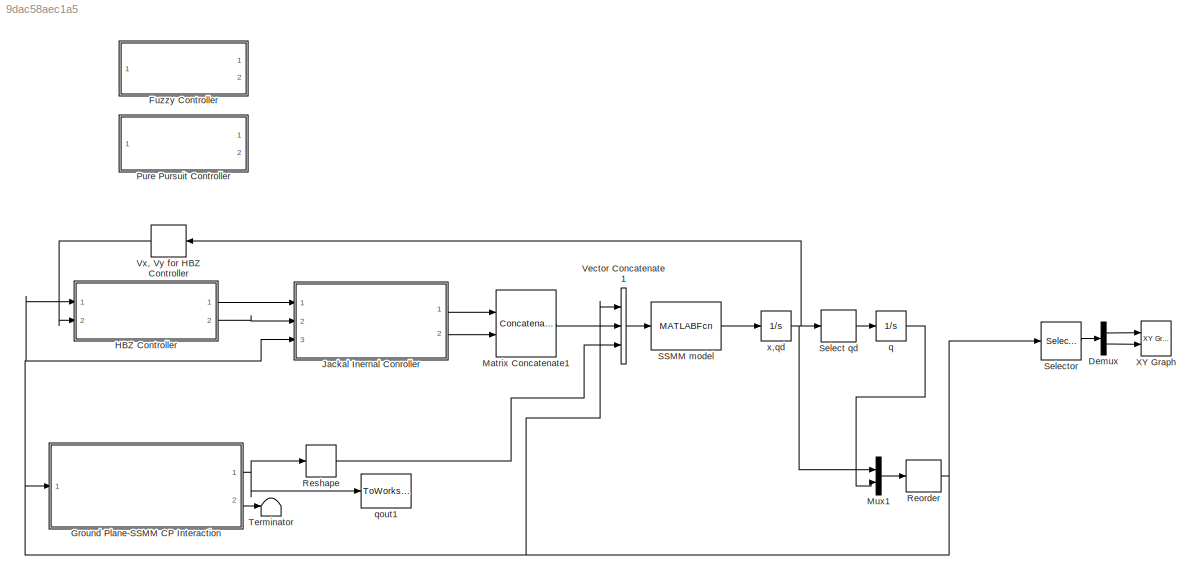
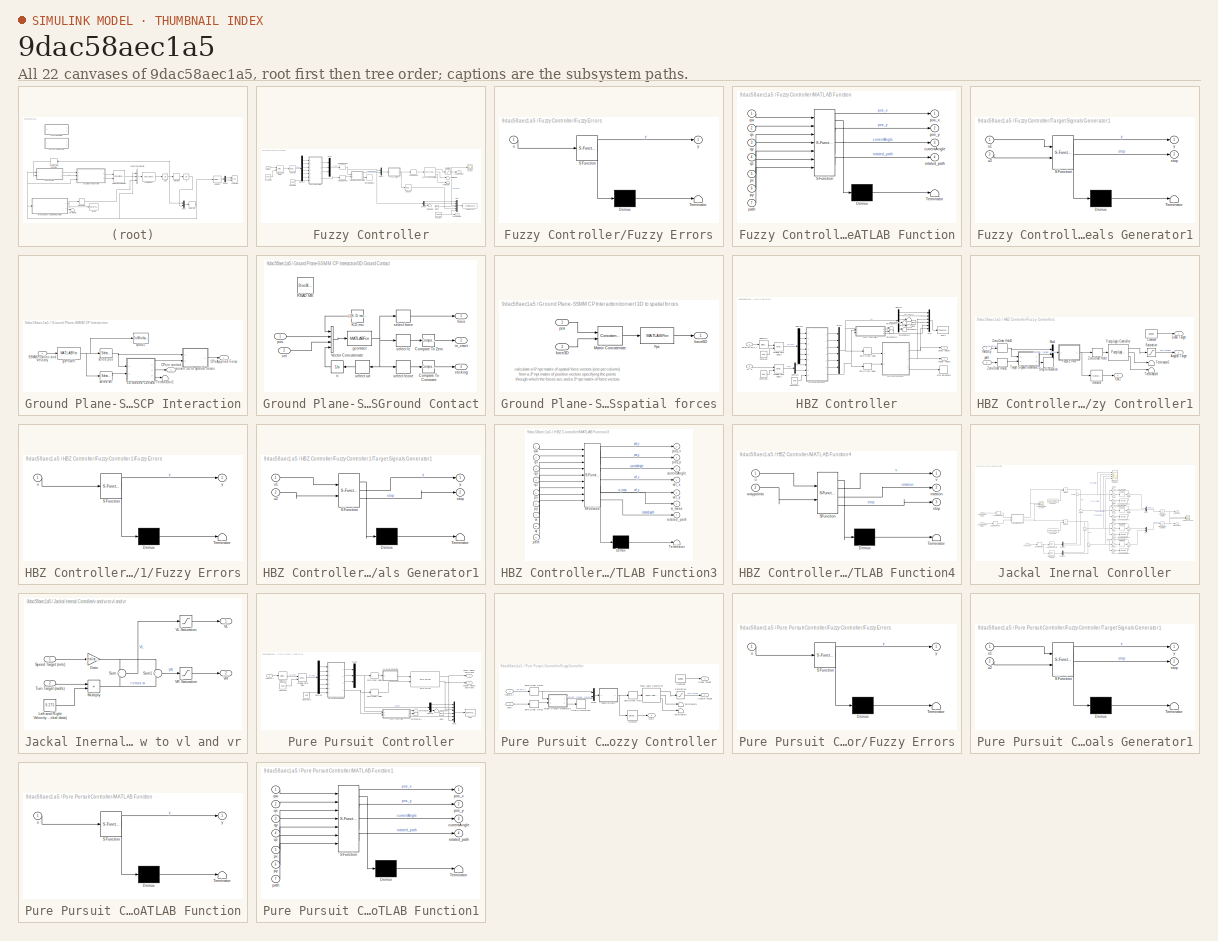
[diagram: thumbnail index - all 22 canvases of the model, root first then tree order]
MODEL slx_9dac58aec1a5
KIND model
CONFIG AbsTol = .05
CONFIG EnableMultiTasking = on
CONFIG FixedStep = 0.001
CONFIG InitFcn = SSMM_sim_Torque_3DOF_Init
CONFIG MaxStep = 1e-1
CONFIG MinStep = 1e-6
CONFIG RelTol = .05
CONFIG SampleTimeConstraint = Unconstrained
CONFIG SolverName = FixedStepAuto
CONFIG StartTime = 0.0
CONFIG StopTime = 15
BLOCK [Demux] Demux
  Outputs = 2
  Ports = [1, 2]
BLOCK [SubSystem] Fuzzy Controller
  Commented = on
  Ports = [1, 2]
  RequestExecContextInheritance = off
BLOCK [Outport] Fuzzy Controller/ Angular Target
  Port = 2
  VectorParamsAs1DForOutWhenUnconnected = off
BLOCK [Clock] Fuzzy Controller/Clock
BLOCK [Constant] Fuzzy Controller/Constant
  Value = speed
BLOCK [Constant] Fuzzy Controller/Constant1
  Value = path
BLOCK [Constant] Fuzzy Controller/Constant2
  Value = delay
BLOCK [Demux] Fuzzy Controller/Demux
  Outputs = 3
  Ports = [1, 3]
BLOCK [Demux] Fuzzy Controller/Demux1
  Outputs = 6
  Ports = [1, 6]
BLOCK [SubSystem] Fuzzy Controller/Fuzzy Errors
  ErrorFcn = Stateflow.Translate.translate
  PermitHierarchicalResolution = ExplicitOnly
  Ports = [1, 1]
  RequestExecContextInheritance = off
  SFBlockType = MATLAB Function
  TreatAsAtomicUnit = on
BLOCK [Demux] Fuzzy Controller/Fuzzy Errors/ Demux 
  Outputs = 1
  Ports = [1, 1]
BLOCK [S-Function] Fuzzy Controller/Fuzzy Errors/ SFunction 
  EnableBusSupport = on
  FunctionName = sf_sfun
  PortCounts = [1 2]
  Ports = [1, 2]
  SFcnIsStateOwnerBlock = off
  SFunctionDeploymentMode = off
  Tag = Stateflow S-Function 2
BLOCK [Terminator] Fuzzy Controller/Fuzzy Errors/ Terminator 
BLOCK [Inport] Fuzzy Controller/Fuzzy Errors/u
BLOCK [Outport] Fuzzy Controller/Fuzzy Errors/y
  VectorParamsAs1DForOutWhenUnconnected = off
BLOCK [Reference] Fuzzy Controller/Fuzzy Logic Controller  REF=fuzblock/Fuzzy Logic   (lib defined in mdl_858b3b3e7478)
Controller
  Ports = [1, 3]
  SourceBlock = fuzblock/Fuzzy Logic \nController
  SourceProductBaseCode = FL
  SourceType = Fuzzy Inference System
BLOCK [Outport] Fuzzy Controller/Linear Target
  VectorParamsAs1DForOutWhenUnconnected = off
BLOCK [SubSystem] Fuzzy Controller/MATLAB Function
  ErrorFcn = Stateflow.Translate.translate
  PermitHierarchicalResolution = ExplicitOnly
  Ports = [7, 4]
  RequestExecContextInheritance = off
  SFBlockType = MATLAB Function
  TreatAsAtomicUnit = on
BLOCK [Demux] Fuzzy Controller/MATLAB Function/ Demux 
  Outputs = 1
  Ports = [1, 1]
BLOCK [S-Function] Fuzzy Controller/MATLAB Function/ SFunction 
  EnableBusSupport = on
  FunctionName = sf_sfun
  PortCounts = [7 5]
  Ports = [7, 5]
  SFcnIsStateOwnerBlock = off
  SFunctionDeploymentMode = off
  Tag = Stateflow S-Function 10
BLOCK [Terminator] Fuzzy Controller/MATLAB Function/ Terminator 
BLOCK [Outport] Fuzzy Controller/MATLAB Function/currentAngle
  Port = 3
BLOCK [Inport] Fuzzy Controller/MATLAB Function/path
  Port = 7
BLOCK [Outport] Fuzzy Controller/MATLAB Function/pos_x
BLOCK [Outport] Fuzzy Controller/MATLAB Function/pos_y
  Port = 2
BLOCK [Inport] Fuzzy Controller/MATLAB Function/px
  Port = 5
BLOCK [Inport] Fuzzy Controller/MATLAB Function/py
  Port = 6
BLOCK [Inport] Fuzzy Controller/MATLAB Function/qw
BLOCK [Inport] Fuzzy Controller/MATLAB Function/qx
  Port = 2
BLOCK [Inport] Fuzzy Controller/MATLAB Function/qy
  Port = 3
BLOCK [Inport] Fuzzy Controller/MATLAB Function/qz
  Port = 4
BLOCK [Outport] Fuzzy Controller/MATLAB Function/rotated_path
  Port = 4
BLOCK [Mux] Fuzzy Controller/Mux
  DisplayOption = bar
  Inputs = 6
  Ports = [6, 1]
BLOCK [Mux] Fuzzy Controller/Mux1
  DisplayOption = bar
  Inputs = 2
  Ports = [2, 1]
BLOCK [Mux] Fuzzy Controller/Mux2
  DisplayOption = bar
  Inputs = 3
  Ports = [3, 1]
BLOCK [Saturate] Fuzzy Controller/Saturation
  LowerLimit = -angVeloSat
  UpperLimit = angVeloSat
BLOCK [Scope] Fuzzy Controller/Scope
  Floating = off
  NumInputPorts = 1
  Ports = [1]
  ScopeSpecificationString = Simulink.scopes.TimeScopeBlockCfg('CurrentConfiguration', extmgr.ConfigurationSet(extmgr.Configuration('Core','General UI',true),extmgr.Configuration('Core','Source UI',true),extmgr.Configuration('Sources','WiredSimulink',true,'DataLoggingVariableName','ScopeData1'),extmgr.Configuration('Visuals','Time Domain',true,'SerializedDisplays',{struct('MinYLimReal','-2.90872','MaxYLimReal','4.76763','YLab...<+1411ch>
BLOCK [Selector] Fuzzy Controller/Selector
  IndexOptions = Index vector (dialog)
  Indices = [1]
  InputPortWidth = 5
  OutputSizes = 1
  Ports = [1, 1]
BLOCK [Selector] Fuzzy Controller/Selector1
  IndexOptions = Index vector (dialog)
  Indices = [1 2 3 4 5 6]
  InputPortWidth = 21
  OutputSizes = 1
  Ports = [1, 1]
BLOCK [Stop] Fuzzy Controller/Stop Simulation1
BLOCK [SubSystem] Fuzzy Controller/Target Signals Generator1
  ErrorFcn = Stateflow.Translate.translate
  PermitHierarchicalResolution = ExplicitOnly
  Ports = [2, 2]
  RequestExecContextInheritance = off
  SFBlockType = MATLAB Function
  TreatAsAtomicUnit = on
BLOCK [Demux] Fuzzy Controller/Target Signals Generator1/ Demux 
  Outputs = 1
  Ports = [1, 1]
BLOCK [S-Function] Fuzzy Controller/Target Signals Generator1/ SFunction 
  EnableBusSupport = on
  FunctionName = sf_sfun
  PortCounts = [2 3]
  Ports = [2, 3]
  SFcnIsStateOwnerBlock = off
  SFunctionDeploymentMode = off
  Tag = Stateflow S-Function 3
BLOCK [Terminator] Fuzzy Controller/Target Signals Generator1/ Terminator 
BLOCK [Outport] Fuzzy Controller/Target Signals Generator1/stop
  Port = 2
  VectorParamsAs1DForOutWhenUnconnected = off
BLOCK [Inport] Fuzzy Controller/Target Signals Generator1/u1
BLOCK [Inport] Fuzzy Controller/Target Signals Generator1/u2
  Port = 2
BLOCK [Outport] Fuzzy Controller/Target Signals Generator1/y
  VectorParamsAs1DForOutWhenUnconnected = off
BLOCK [Terminator] Fuzzy Controller/Terminator3
BLOCK [Terminator] Fuzzy Controller/Terminator4
BLOCK [Terminator] Fuzzy Controller/Terminator5
BLOCK [ToWorkspace] Fuzzy Controller/To Workspace
  FixptAsFi = on
  MaxDataPoints = inf
  Ports = [1]
  SampleTime = -1
  VariableName = output
BLOCK [VariableTransportDelay] Fuzzy Controller/Variable Time Delay
  MaximumDelay = 10
  MaximumPoints = 6244
  Ports = [2, 1]
BLOCK [ZeroOrderHold] Fuzzy Controller/Zero-Order Hold
  SampleTime = .001
BLOCK [ZeroOrderHold] Fuzzy Controller/Zero-Order Hold2
  SampleTime = .001
BLOCK [ZeroOrderHold] Fuzzy Controller/Zero-Order Hold3
  SampleTime = .001
BLOCK [Inport] Fuzzy Controller/theta,x,y
BLOCK [SubSystem] Ground Plane-SSMM CP Interaction
  Ports = [1, 2]
  RequestExecContextInheritance = off
BLOCK [SubSystem] Ground Plane-SSMM CP Interaction/3D Ground Contact
  Ports = [2, 3]
  RequestExecContextInheritance = off
BLOCK [Reference] Ground Plane-SSMM CP Interaction/3D Ground Contact/Compare To Constant  REF=simulink/Logic and Bit
Operations/Compare
To Constant
  Ports = [1, 1]
  SourceBlock = simulink/Logic and Bit\nOperations/Compare\nTo Constant
  SourceProductBaseCode = SL
  SourceType = Compare To Constant
BLOCK [Reference] Ground Plane-SSMM CP Interaction/3D Ground Contact/Compare To Zero  REF=simulink/Logic and Bit
Operations/Compare
To Zero
  Ports = [1, 1]
  SourceBlock = simulink/Logic and Bit\nOperations/Compare\nTo Zero
  SourceProductBaseCode = SL
  SourceType = Compare To Zero
BLOCK [Constant] Ground Plane-SSMM CP Interaction/3D Ground Contact/K,D,mu
  Value = [ [K; D; mu] zeros(3,np-1) ]
  VectorParams1D = off
BLOCK [Reference] Ground Plane-SSMM CP Interaction/3D Ground Contact/READ ME  REF=simulink/Model-Wide
Utilities/DocBlock
  Ports = []
  SourceBlock = simulink/Model-Wide\nUtilities/DocBlock
  SourceProductBaseCode = SL
  SourceType = DocBlock
  UserDataPersistent = on
BLOCK [Concatenate] Ground Plane-SSMM CP Interaction/3D Ground Contact/Vector Concatenate
  Mode = Multidimensional array
  NumInputs = 4
  Ports = [4, 1]
BLOCK [Outport] Ground Plane-SSMM CP Interaction/3D Ground Contact/force
  VectorParamsAs1DForOutWhenUnconnected = off
BLOCK [MATLABFcn] Ground Plane-SSMM CP Interaction/3D Ground Contact/gcontact
  MATLABFcn = gcontact( u(1,1), u(2,1), u(3,1), u(4:6,:), u(7:9,:), u(10:11,:) )
  Output1D = off
  OutputDimensions = [6 np]
  OutputSignalType = real
  Ports = [1, 1]
BLOCK [Outport] Ground Plane-SSMM CP Interaction/3D Ground Contact/in_ctact
  Port = 2
  VectorParamsAs1DForOutWhenUnconnected = off
BLOCK [Inport] Ground Plane-SSMM CP Interaction/3D Ground Contact/pos
BLOCK [Selector] Ground Plane-SSMM CP Interaction/3D Ground Contact/select fcone
  IndexOptions = Index vector (dialog),Select all
  Indices = [6],1
  InputPortWidth = 3
  NumberOfDimensions = 2
  OutputSizes = 1,1
  Ports = [1, 1]
BLOCK [Selector] Ground Plane-SSMM CP Interaction/3D Ground Contact/select force
  IndexOptions = Index vector (dialog),Select all
  Indices = [1 2 3],1
  InputPortWidth = 3
  NumberOfDimensions = 2
  OutputSizes = 1,1
  Ports = [1, 1]
BLOCK [Selector] Ground Plane-SSMM CP Interaction/3D Ground Contact/select fz
  IndexOptions = Index vector (dialog),Select all
  Indices = [3],1
  InputPortWidth = 3
  NumberOfDimensions = 2
  OutputSizes = 1,1
  Ports = [1, 1]
BLOCK [Selector] Ground Plane-SSMM CP Interaction/3D Ground Contact/select ud
  IndexOptions = Index vector (dialog),Select all
  Indices = [4 5],1
  InputPortWidth = 3
  NumberOfDimensions = 2
  OutputSizes = 1,1
  Ports = [1, 1]
BLOCK [Outport] Ground Plane-SSMM CP Interaction/3D Ground Contact/sticking
  Port = 3
  VectorParamsAs1DForOutWhenUnconnected = off
BLOCK [Integrator] Ground Plane-SSMM CP Interaction/3D Ground Contact/u
  Ports = [1, 1]
BLOCK [Inport] Ground Plane-SSMM CP Interaction/3D Ground Contact/vel
  Port = 2
BLOCK [Outport] Ground Plane-SSMM CP Interaction/CPs Applied Force
  VectorParamsAs1DForOutWhenUnconnected = off
BLOCK [Outport] Ground Plane-SSMM CP Interaction/CPs in contact
  Port = 2
  VectorParamsAs1DForOutWhenUnconnected = off
BLOCK [Inport] Ground Plane-SSMM CP Interaction/SSMM Position and Velocity
BLOCK [Terminator] Ground Plane-SSMM CP Interaction/Terminator1
BLOCK [SubSystem] Ground Plane-SSMM CP Interaction/convert 3D to spatial forces
  Ports = [2, 1]
  RequestExecContextInheritance = off
BLOCK [MATLABFcn] Ground Plane-SSMM CP Interaction/convert 3D to spatial forces/Fpt
  MATLABFcn = Fpt( u(4:6,:), u(1:3,:) )
  Output1D = off
  OutputSignalType = real
  Ports = [1, 1]
BLOCK [Concatenate] Ground Plane-SSMM CP Interaction/convert 3D to spatial forces/Matrix Concatenate
  Mode = Multidimensional array
  Ports = [2, 1]
BLOCK [Inport] Ground Plane-SSMM CP Interaction/convert 3D to spatial forces/force3D
  Port = 2
BLOCK [Outport] Ground Plane-SSMM CP Interaction/convert 3D to spatial forces/force6D
  VectorParamsAs1DForOutWhenUnconnected = off
BLOCK [Inport] Ground Plane-SSMM CP Interaction/convert 3D to spatial forces/pos
BLOCK [MATLABFcn] Ground Plane-SSMM CP Interaction/gcPosVel
  MATLABFcn = gcPosVel(model, u(1:13),u(14:17),u(18:21) )
  Output1D = off
  OutputDimensions = [6 CP_Num]
  OutputSignalType = real
  Ports = [1, 1]
BLOCK [ToWorkspace] Ground Plane-SSMM CP Interaction/qout1
  MaxDataPoints = inf
  Ports = [1]
  SampleTime = -1
  VariableName = PosVel
BLOCK [Selector] Ground Plane-SSMM CP Interaction/select pos
  IndexOptions = Index vector (dialog),Select all
  Indices = [1 2 3],1
  InputPortWidth = 3
  NumberOfDimensions = 2
  OutputSizes = 1,1
  Ports = [1, 1]
BLOCK [Selector] Ground Plane-SSMM CP Interaction/select vel
  IndexOptions = Index vector (dialog),Select all
  Indices = [4 5 6],1
  InputPortWidth = 3
  NumberOfDimensions = 2
  OutputSizes = 1,1
  Ports = [1, 1]
BLOCK [SubSystem] HBZ Controller
  Ports = [2, 2]
  RequestExecContextInheritance = off
BLOCK [Outport] HBZ Controller/Angular Velocity
  Port = 2
  VectorParamsAs1DForOutWhenUnconnected = off
BLOCK [Clock] HBZ Controller/Clock
BLOCK [Constant] HBZ Controller/Constant
  Value = delay
BLOCK [Constant] HBZ Controller/Constant1
  Value = delay
BLOCK [Constant] HBZ Controller/Constant6
  Value = path
BLOCK [Demux] HBZ Controller/Demux
  Outputs = 6
  Ports = [1, 6]
BLOCK [Demux] HBZ Controller/Demux1
  Outputs = 2
  Ports = [1, 2]
BLOCK [Demux] HBZ Controller/Demux2
  Outputs = 6
  Ports = [1, 6]
BLOCK [SubSystem] HBZ Controller/Fuzzy Controller1
  Ports = [2, 3]
  RequestExecContextInheritance = off
BLOCK [Outport] HBZ Controller/Fuzzy Controller1/ Angular Target
  Port = 2
  VectorParamsAs1DForOutWhenUnconnected = off
BLOCK [Constant] HBZ Controller/Fuzzy Controller1/Constant
  Value = speed
BLOCK [SubSystem] HBZ Controller/Fuzzy Controller1/Fuzzy Errors
  ErrorFcn = Stateflow.Translate.translate
  PermitHierarchicalResolution = ExplicitOnly
  Ports = [1, 1]
  RequestExecContextInheritance = off
  SFBlockType = MATLAB Function
  TreatAsAtomicUnit = on
BLOCK [Demux] HBZ Controller/Fuzzy Controller1/Fuzzy Errors/ Demux 
  Outputs = 1
  Ports = [1, 1]
BLOCK [S-Function] HBZ Controller/Fuzzy Controller1/Fuzzy Errors/ SFunction 
  EnableBusSupport = on
  FunctionName = sf_sfun
  PortCounts = [1 2]
  Ports = [1, 2]
  SFcnIsStateOwnerBlock = off
  SFunctionDeploymentMode = off
  Tag = Stateflow S-Function 14
BLOCK [Terminator] HBZ Controller/Fuzzy Controller1/Fuzzy Errors/ Terminator 
BLOCK [Inport] HBZ Controller/Fuzzy Controller1/Fuzzy Errors/u
BLOCK [Outport] HBZ Controller/Fuzzy Controller1/Fuzzy Errors/y
  VectorParamsAs1DForOutWhenUnconnected = off
BLOCK [Reference] HBZ Controller/Fuzzy Controller1/Fuzzy Logic Controller  REF=fuzblock/Fuzzy Logic   (lib defined in mdl_858b3b3e7478)
Controller
  Ports = [1, 3]
  SourceBlock = fuzblock/Fuzzy Logic \nController
  SourceProductBaseCode = FL
  SourceType = Fuzzy Inference System
BLOCK [Outport] HBZ Controller/Fuzzy Controller1/Linear Target
  VectorParamsAs1DForOutWhenUnconnected = off
BLOCK [Mux] HBZ Controller/Fuzzy Controller1/Mux1
  DisplayOption = bar
  Inputs = 2
  Ports = [2, 1]
BLOCK [Outport] HBZ Controller/Fuzzy Controller1/Out1
  Port = 3
BLOCK [Saturate] HBZ Controller/Fuzzy Controller1/Saturation
  LowerLimit = -angVeloSat
  UpperLimit = angVeloSat
BLOCK [Selector] HBZ Controller/Fuzzy Controller1/Selector
  IndexOptions = Index vector (dialog)
  Indices = [1]
  InputPortWidth = 5
  OutputSizes = 1
  Ports = [1, 1]
BLOCK [Stop] HBZ Controller/Fuzzy Controller1/Stop Simulation
BLOCK [SubSystem] HBZ Controller/Fuzzy Controller1/Target Signals Generator1
  ErrorFcn = Stateflow.Translate.translate
  PermitHierarchicalResolution = ExplicitOnly
  Ports = [2, 2]
  RequestExecContextInheritance = off
  SFBlockType = MATLAB Function
  TreatAsAtomicUnit = on
BLOCK [Demux] HBZ Controller/Fuzzy Controller1/Target Signals Generator1/ Demux 
  Outputs = 1
  Ports = [1, 1]
BLOCK [S-Function] HBZ Controller/Fuzzy Controller1/Target Signals Generator1/ SFunction 
  EnableBusSupport = on
  FunctionName = sf_sfun
  PortCounts = [2 3]
  Ports = [2, 3]
  SFcnIsStateOwnerBlock = off
  SFunctionDeploymentMode = off
  Tag = Stateflow S-Function 15
BLOCK [Terminator] HBZ Controller/Fuzzy Controller1/Target Signals Generator1/ Terminator 
BLOCK [Outport] HBZ Controller/Fuzzy Controller1/Target Signals Generator1/stop
  Port = 2
BLOCK [Inport] HBZ Controller/Fuzzy Controller1/Target Signals Generator1/u1
BLOCK [Inport] HBZ Controller/Fuzzy Controller1/Target Signals Generator1/u2
  Port = 2
BLOCK [Outport] HBZ Controller/Fuzzy Controller1/Target Signals Generator1/y
  VectorParamsAs1DForOutWhenUnconnected = off
BLOCK [Terminator] HBZ Controller/Fuzzy Controller1/Terminator5
BLOCK [Terminator] HBZ Controller/Fuzzy Controller1/Terminator6
BLOCK [ZeroOrderHold] HBZ Controller/Fuzzy Controller1/Zero-Order Hold
  SampleTime = -1
BLOCK [ZeroOrderHold] HBZ Controller/Fuzzy Controller1/Zero-Order Hold2
  SampleTime = -1
BLOCK [ZeroOrderHold] HBZ Controller/Fuzzy Controller1/Zero-Order Hold3
  SampleTime = -1
BLOCK [Inport] HBZ Controller/Fuzzy Controller1/path
  Port = 2
BLOCK [Inport] HBZ Controller/Fuzzy Controller1/theta,x,y
BLOCK [Outport] HBZ Controller/Linear Velocity
  VectorParamsAs1DForOutWhenUnconnected = off
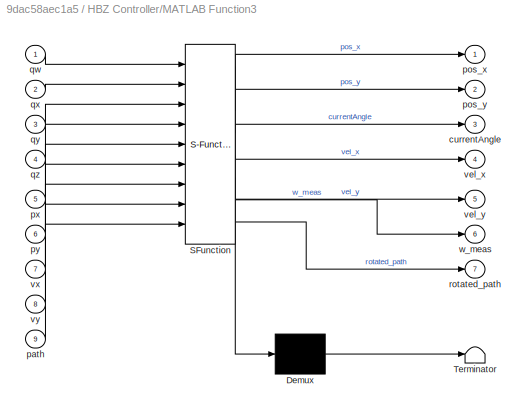
BLOCK [SubSystem] HBZ Controller/MATLAB Function3
  ErrorFcn = Stateflow.Translate.translate
  PermitHierarchicalResolution = ExplicitOnly
  Ports = [9, 7]
  RequestExecContextInheritance = off
  SFBlockType = MATLAB Function
  TreatAsAtomicUnit = on
BLOCK [Demux] HBZ Controller/MATLAB Function3/ Demux 
  Outputs = 1
  Ports = [1, 1]
BLOCK [S-Function] HBZ Controller/MATLAB Function3/ SFunction 
  EnableBusSupport = on
  FunctionName = sf_sfun
  PortCounts = [9 8]
  Ports = [9, 8]
  SFcnIsStateOwnerBlock = off
  SFunctionDeploymentMode = off
  Tag = Stateflow S-Function 17
BLOCK [Terminator] HBZ Controller/MATLAB Function3/ Terminator 
BLOCK [Outport] HBZ Controller/MATLAB Function3/currentAngle
  Port = 3
BLOCK [Inport] HBZ Controller/MATLAB Function3/path
  Port = 9
BLOCK [Outport] HBZ Controller/MATLAB Function3/pos_x
BLOCK [Outport] HBZ Controller/MATLAB Function3/pos_y
  Port = 2
BLOCK [Inport] HBZ Controller/MATLAB Function3/px
  Port = 5
BLOCK [Inport] HBZ Controller/MATLAB Function3/py
  Port = 6
BLOCK [Inport] HBZ Controller/MATLAB Function3/qw
BLOCK [Inport] HBZ Controller/MATLAB Function3/qx
  Port = 2
BLOCK [Inport] HBZ Controller/MATLAB Function3/qy
  Port = 3
BLOCK [Inport] HBZ Controller/MATLAB Function3/qz
  Port = 4
BLOCK [Outport] HBZ Controller/MATLAB Function3/rotated_path
  Port = 7
BLOCK [Outport] HBZ Controller/MATLAB Function3/vel_x
  Port = 4
BLOCK [Outport] HBZ Controller/MATLAB Function3/vel_y
  Port = 5
BLOCK [Inport] HBZ Controller/MATLAB Function3/vx
  Port = 7
BLOCK [Inport] HBZ Controller/MATLAB Function3/vy
  Port = 8
BLOCK [Outport] HBZ Controller/MATLAB Function3/w_meas
  Port = 6
BLOCK [SubSystem] HBZ Controller/MATLAB Function4
  ErrorFcn = Stateflow.Translate.translate
  PermitHierarchicalResolution = ExplicitOnly
  Ports = [2, 3]
  RequestExecContextInheritance = off
  SFBlockType = MATLAB Function
  TreatAsAtomicUnit = on
BLOCK [Demux] HBZ Controller/MATLAB Function4/ Demux 
  Outputs = 1
  Ports = [1, 1]
BLOCK [S-Function] HBZ Controller/MATLAB Function4/ SFunction 
  EnableBusSupport = on
  FunctionName = sf_sfun
  PortCounts = [2 4]
  Ports = [2, 4]
  SFcnIsStateOwnerBlock = off
  SFunctionDeploymentMode = off
  Tag = Stateflow S-Function 18
BLOCK [Terminator] HBZ Controller/MATLAB Function4/ Terminator 
BLOCK [Outport] HBZ Controller/MATLAB Function4/rotation
  Port = 2
BLOCK [Outport] HBZ Controller/MATLAB Function4/stop
  Port = 3
BLOCK [Inport] HBZ Controller/MATLAB Function4/u
BLOCK [Outport] HBZ Controller/MATLAB Function4/v
BLOCK [Inport] HBZ Controller/MATLAB Function4/waypoints
  Port = 2
BLOCK [Mux] HBZ Controller/Mux
  DisplayOption = bar
  Inputs = 6
  Ports = [6, 1]
BLOCK [Mux] HBZ Controller/Mux2
  DisplayOption = bar
  Inputs = 6
  Ports = [6, 1]
BLOCK [Selector] HBZ Controller/Selector3
  IndexOptions = Index vector (dialog)
  Indices = [1 2 3 4 5 6]
  InputPortWidth = 21
  OutputSizes = 1
  Ports = [1, 1]
BLOCK [Stop] HBZ Controller/Stop Simulation1
BLOCK [Terminator] HBZ Controller/Terminator
BLOCK [Terminator] HBZ Controller/Terminator1
BLOCK [Terminator] HBZ Controller/Terminator2
BLOCK [Terminator] HBZ Controller/Terminator3
BLOCK [Terminator] HBZ Controller/Terminator4
BLOCK [Terminator] HBZ Controller/Terminator5
BLOCK [VariableTransportDelay] HBZ Controller/Variable Time Delay1
  MaximumDelay = 10
  MaximumPoints = 10340
  Ports = [2, 1]
BLOCK [VariableTransportDelay] HBZ Controller/Variable Time Delay2
  MaximumDelay = 10
  MaximumPoints = 10340
  Ports = [2, 1]
BLOCK [Inport] HBZ Controller/Vx, Vy
  Port = 2
BLOCK [ZeroOrderHold] HBZ Controller/Zero-Order Hold6
  SampleTime = -1
BLOCK [ZeroOrderHold] HBZ Controller/Zero-Order Hold7
  SampleTime = -1
BLOCK [ToWorkspace] HBZ Controller/qout1
  MaxDataPoints = inf
  Ports = [1]
  SampleTime = -1
  VariableName = output
BLOCK [Inport] HBZ Controller/qw,qx,qy,qz,x,y
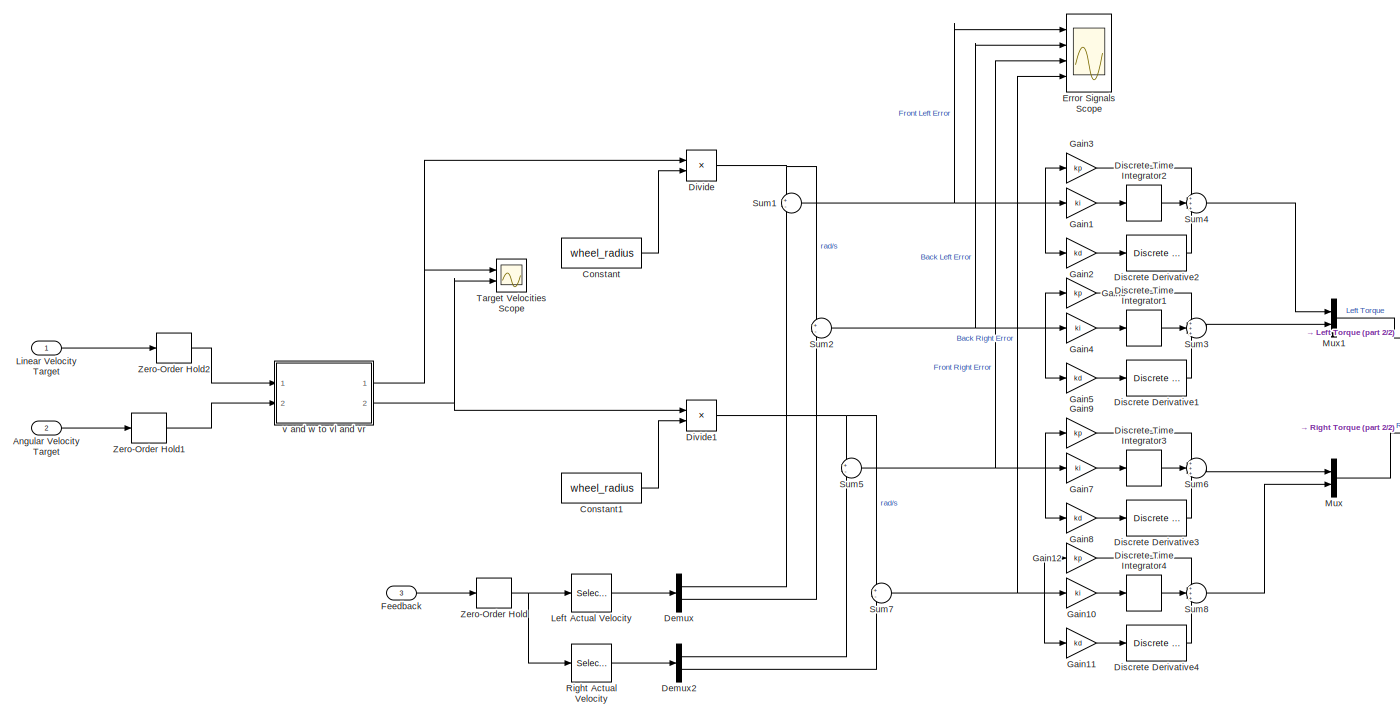
[diagram: Jackal Inernal Conroller - part 1/2, most of the canvas]
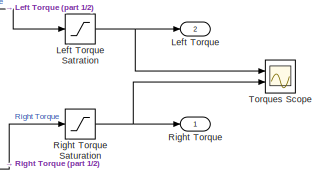
[diagram: Jackal Inernal Conroller - part 2/2, middle right region]
BLOCK [SubSystem] Jackal Inernal Conroller
  Ports = [3, 2]
  RequestExecContextInheritance = off
BLOCK [Inport] Jackal Inernal Conroller/Angular Velocity Target
  Port = 2
BLOCK [Constant] Jackal Inernal Conroller/Constant
  Value = wheel_radius
BLOCK [Constant] Jackal Inernal Conroller/Constant1
  Value = wheel_radius
BLOCK [Demux] Jackal Inernal Conroller/Demux
  Outputs = 2
  Ports = [1, 2]
BLOCK [Demux] Jackal Inernal Conroller/Demux2
  Outputs = 2
  Ports = [1, 2]
BLOCK [Reference] Jackal Inernal Conroller/Discrete Derivative1  REF=simulink/Discrete/Discrete Derivative
  Ports = [1, 1]
  SourceBlock = simulink/Discrete/Discrete Derivative
  SourceProductBaseCode = SL
  SourceType = Discrete Derivative
BLOCK [Reference] Jackal Inernal Conroller/Discrete Derivative2  REF=simulink/Discrete/Discrete Derivative
  Ports = [1, 1]
  SourceBlock = simulink/Discrete/Discrete Derivative
  SourceProductBaseCode = SL
  SourceType = Discrete Derivative
BLOCK [Reference] Jackal Inernal Conroller/Discrete Derivative3  REF=simulink/Discrete/Discrete Derivative
  Ports = [1, 1]
  SourceBlock = simulink/Discrete/Discrete Derivative
  SourceProductBaseCode = SL
  SourceType = Discrete Derivative
BLOCK [Reference] Jackal Inernal Conroller/Discrete Derivative4  REF=simulink/Discrete/Discrete Derivative
  Ports = [1, 1]
  SourceBlock = simulink/Discrete/Discrete Derivative
  SourceProductBaseCode = SL
  SourceType = Discrete Derivative
BLOCK [DiscreteIntegrator] Jackal Inernal Conroller/Discrete-Time Integrator1
  ICPrevOutput = DiscIntNeverNeededParam
  ICPrevScaledInput = DiscIntNeverNeededParam
  InitialConditionSetting = Auto
  Ports = [1, 1]
  SampleTime = -1
BLOCK [DiscreteIntegrator] Jackal Inernal Conroller/Discrete-Time Integrator2
  ICPrevOutput = DiscIntNeverNeededParam
  ICPrevScaledInput = DiscIntNeverNeededParam
  InitialConditionSetting = Auto
  Ports = [1, 1]
  SampleTime = -1
BLOCK [DiscreteIntegrator] Jackal Inernal Conroller/Discrete-Time Integrator3
  ICPrevOutput = DiscIntNeverNeededParam
  ICPrevScaledInput = DiscIntNeverNeededParam
  InitialConditionSetting = Auto
  Ports = [1, 1]
  SampleTime = -1
BLOCK [DiscreteIntegrator] Jackal Inernal Conroller/Discrete-Time Integrator4
  ICPrevOutput = DiscIntNeverNeededParam
  ICPrevScaledInput = DiscIntNeverNeededParam
  InitialConditionSetting = Auto
  Ports = [1, 1]
  SampleTime = -1
BLOCK [Product] Jackal Inernal Conroller/Divide
  Inputs = */
  Ports = [2, 1]
BLOCK [Product] Jackal Inernal Conroller/Divide1
  Inputs = */
  Ports = [2, 1]
BLOCK [Scope] Jackal Inernal Conroller/Error Signals Scope
  Floating = off
  NumInputPorts = 4
  Ports = [4]
  ScopeSpecificationString = Simulink.scopes.TimeScopeBlockCfg('CurrentConfiguration', extmgr.ConfigurationSet(extmgr.Configuration('Core','General UI',true),extmgr.Configuration('Core','Source UI',true),extmgr.Configuration('Sources','WiredSimulink',true,'DataLoggingVariableName','ScopeData1'),extmgr.Configuration('Visuals','Time Domain',true,'SerializedDisplays',{struct('MinYLimReal','-1.00000','MaxYLimReal','1.00000','YLab...<+1503ch>
BLOCK [Inport] Jackal Inernal Conroller/Feedback
  Port = 3
BLOCK [Gain] Jackal Inernal Conroller/Gain1
  Gain = ki
BLOCK [Gain] Jackal Inernal Conroller/Gain10
  Gain = ki
BLOCK [Gain] Jackal Inernal Conroller/Gain11
  Gain = kd
BLOCK [Gain] Jackal Inernal Conroller/Gain12
  Gain = kp
BLOCK [Gain] Jackal Inernal Conroller/Gain2
  Gain = kd
BLOCK [Gain] Jackal Inernal Conroller/Gain3
  Gain = kp
BLOCK [Gain] Jackal Inernal Conroller/Gain4
  Gain = ki
BLOCK [Gain] Jackal Inernal Conroller/Gain5
  Gain = kd
BLOCK [Gain] Jackal Inernal Conroller/Gain6
  Gain = kp
BLOCK [Gain] Jackal Inernal Conroller/Gain7
  Gain = ki
BLOCK [Gain] Jackal Inernal Conroller/Gain8
  Gain = kd
BLOCK [Gain] Jackal Inernal Conroller/Gain9
  Gain = kp
BLOCK [Selector] Jackal Inernal Conroller/Left Actual Velocity
  IndexOptions = Index vector (dialog)
  Indices = [20 21]
  InputPortWidth = 21
  OutputSizes = 1
  Ports = [1, 1]
BLOCK [Outport] Jackal Inernal Conroller/Left Torque
  Port = 2
  VectorParamsAs1DForOutWhenUnconnected = off
BLOCK [Saturate] Jackal Inernal Conroller/Left Torque Satration
  LowerLimit = -torque_saturation
  UpperLimit = torque_saturation
BLOCK [Inport] Jackal Inernal Conroller/Linear Velocity Target
BLOCK [Mux] Jackal Inernal Conroller/Mux
  DisplayOption = bar
  Inputs = 2
  Ports = [2, 1]
BLOCK [Mux] Jackal Inernal Conroller/Mux1
  DisplayOption = bar
  Inputs = 2
  Ports = [2, 1]
BLOCK [Selector] Jackal Inernal Conroller/Right Actual Velocity
  IndexOptions = Index vector (dialog)
  Indices = [18 19]
  InputPortWidth = 21
  OutputSizes = 1
  Ports = [1, 1]
BLOCK [Outport] Jackal Inernal Conroller/Right Torque
  VectorParamsAs1DForOutWhenUnconnected = off
BLOCK [Saturate] Jackal Inernal Conroller/Right Torque Saturation
  LowerLimit = -torque_saturation
  UpperLimit = torque_saturation
BLOCK [Sum] Jackal Inernal Conroller/Sum1
  Inputs = +-
  Ports = [2, 1]
BLOCK [Sum] Jackal Inernal Conroller/Sum2
  Inputs = +-
  Ports = [2, 1]
BLOCK [Sum] Jackal Inernal Conroller/Sum3
  Inputs = +++
  Ports = [3, 1]
BLOCK [Sum] Jackal Inernal Conroller/Sum4
  Inputs = +++
  Ports = [3, 1]
BLOCK [Sum] Jackal Inernal Conroller/Sum5
  Inputs = +-
  Ports = [2, 1]
BLOCK [Sum] Jackal Inernal Conroller/Sum6
  Inputs = +++
  Ports = [3, 1]
BLOCK [Sum] Jackal Inernal Conroller/Sum7
  Inputs = +-
  Ports = [2, 1]
BLOCK [Sum] Jackal Inernal Conroller/Sum8
  Inputs = +++
  Ports = [3, 1]
BLOCK [Scope] Jackal Inernal Conroller/Target Velocities Scope
  Floating = off
  NumInputPorts = 2
  Ports = [2]
  ScopeSpecificationString = Simulink.scopes.TimeScopeBlockCfg('CurrentConfiguration', extmgr.ConfigurationSet(extmgr.Configuration('Core','General UI',true),extmgr.Configuration('Core','Source UI',true),extmgr.Configuration('Sources','WiredSimulink',true,'DataLoggingVariableName','ScopeData2'),extmgr.Configuration('Visuals','Time Domain',true,'SerializedDisplays',{struct('MinYLimReal','-1.90597','MaxYLimReal','2.65622','YLab...<+1453ch>
BLOCK [Scope] Jackal Inernal Conroller/Torques Scope
  Floating = off
  NumInputPorts = 2
  Ports = [2]
  ScopeSpecificationString = Simulink.scopes.TimeScopeBlockCfg('CurrentConfiguration', extmgr.ConfigurationSet(extmgr.Configuration('Core','General UI',true),extmgr.Configuration('Core','Source UI',true),extmgr.Configuration('Sources','WiredSimulink',true,'DataLoggingVariableName','ScopeData2'),extmgr.Configuration('Visuals','Time Domain',true,'SerializedDisplays',{struct('MinYLimReal','-6.25','MaxYLimReal','6.25','YLabelReal...<+1474ch>
BLOCK [ZeroOrderHold] Jackal Inernal Conroller/Zero-Order Hold
  SampleTime = -1
BLOCK [ZeroOrderHold] Jackal Inernal Conroller/Zero-Order Hold1
  SampleTime = -1
BLOCK [ZeroOrderHold] Jackal Inernal Conroller/Zero-Order Hold2
  SampleTime = -1
BLOCK [SubSystem] Jackal Inernal Conroller/v and w to vl and vr
  Ports = [2, 2]
  RequestExecContextInheritance = off
BLOCK [Gain] Jackal Inernal Conroller/v and w to vl and vr/Gain
  Gain = realistic_linear_velocity_factor
BLOCK [Constant] Jackal Inernal Conroller/v and w to vl and vr/Left and Right Velocity Assignment constant (determined from real-Jackal data)
  Value = 0.275
BLOCK [Product] Jackal Inernal Conroller/v and w to vl and vr/Multiply
  Inputs = **
  Ports = [2, 1]
BLOCK [Inport] Jackal Inernal Conroller/v and w to vl and vr/Speed Target (m//s)
  AttributesFormatString = Speed Target (m/s)
BLOCK [Sum] Jackal Inernal Conroller/v and w to vl and vr/Sum
  Inputs = +|-
  Ports = [2, 1]
BLOCK [Sum] Jackal Inernal Conroller/v and w to vl and vr/Sum1
  Inputs = +|+
  Ports = [2, 1]
BLOCK [Inport] Jackal Inernal Conroller/v and w to vl and vr/Turn Target (rad//s)
  Port = 2
BLOCK [Outport] Jackal Inernal Conroller/v and w to vl and vr/VL
  VectorParamsAs1DForOutWhenUnconnected = off
BLOCK [Saturate] Jackal Inernal Conroller/v and w to vl and vr/VL Saturation
  LowerLimit = -wheel_veocity_saturation
  UpperLimit = wheel_veocity_saturation
BLOCK [Outport] Jackal Inernal Conroller/v and w to vl and vr/VR
  Port = 2
  VectorParamsAs1DForOutWhenUnconnected = off
BLOCK [Saturate] Jackal Inernal Conroller/v and w to vl and vr/VR Saturation
  LowerLimit = -wheel_veocity_saturation
  UpperLimit = wheel_veocity_saturation
BLOCK [Concatenate] Matrix Concatenate1
  Mode = Multidimensional array
  Ports = [2, 1]
BLOCK [Mux] Mux1
  DisplayOption = bar
  Inputs = 2
  Ports = [2, 1]
BLOCK [SubSystem] Pure Pursuit Controller
  Commented = on
  Ports = [1, 2]
  RequestExecContextInheritance = off
BLOCK [Outport] Pure Pursuit Controller/Angular Velocity Command
  Port = 2
  VectorParamsAs1DForOutWhenUnconnected = off
BLOCK [Clock] Pure Pursuit Controller/Clock
BLOCK [Constant] Pure Pursuit Controller/Constant
  Value = delay
BLOCK [Constant] Pure Pursuit Controller/Constant1
  Value = path
BLOCK [Demux] Pure Pursuit Controller/Demux
  Outputs = 3
  Ports = [1, 3]
BLOCK [Demux] Pure Pursuit Controller/Demux1
  Outputs = 6
  Ports = [1, 6]
BLOCK [SubSystem] Pure Pursuit Controller/Fuzzy Controller
  Ports = [2, 3]
  RequestExecContextInheritance = off
BLOCK [Outport] Pure Pursuit Controller/Fuzzy Controller/ Angular Target
  Port = 2
  VectorParamsAs1DForOutWhenUnconnected = off
BLOCK [Constant] Pure Pursuit Controller/Fuzzy Controller/Constant
  Value = speed
BLOCK [SubSystem] Pure Pursuit Controller/Fuzzy Controller/Fuzzy Errors
  ErrorFcn = Stateflow.Translate.translate
  PermitHierarchicalResolution = ExplicitOnly
  Ports = [1, 1]
  RequestExecContextInheritance = off
  SFBlockType = MATLAB Function
  TreatAsAtomicUnit = on
BLOCK [Demux] Pure Pursuit Controller/Fuzzy Controller/Fuzzy Errors/ Demux 
  Outputs = 1
  Ports = [1, 1]
BLOCK [S-Function] Pure Pursuit Controller/Fuzzy Controller/Fuzzy Errors/ SFunction 
  EnableBusSupport = on
  FunctionName = sf_sfun
  PortCounts = [1 2]
  Ports = [1, 2]
  SFcnIsStateOwnerBlock = off
  SFunctionDeploymentMode = off
  Tag = Stateflow S-Function 5
BLOCK [Terminator] Pure Pursuit Controller/Fuzzy Controller/Fuzzy Errors/ Terminator 
BLOCK [Inport] Pure Pursuit Controller/Fuzzy Controller/Fuzzy Errors/u
BLOCK [Outport] Pure Pursuit Controller/Fuzzy Controller/Fuzzy Errors/y
  VectorParamsAs1DForOutWhenUnconnected = off
BLOCK [Reference] Pure Pursuit Controller/Fuzzy Controller/Fuzzy Logic Controller  REF=fuzblock/Fuzzy Logic   (lib defined in mdl_858b3b3e7478)
Controller
  Ports = [1, 3]
  SourceBlock = fuzblock/Fuzzy Logic \nController
  SourceProductBaseCode = FL
  SourceType = Fuzzy Inference System
BLOCK [Outport] Pure Pursuit Controller/Fuzzy Controller/Linear Target
  VectorParamsAs1DForOutWhenUnconnected = off
BLOCK [Mux] Pure Pursuit Controller/Fuzzy Controller/Mux1
  DisplayOption = bar
  Inputs = 2
  Ports = [2, 1]
BLOCK [Outport] Pure Pursuit Controller/Fuzzy Controller/Out1
  Port = 3
BLOCK [Saturate] Pure Pursuit Controller/Fuzzy Controller/Saturation
  LowerLimit = -angVeloSat
  UpperLimit = angVeloSat
BLOCK [Selector] Pure Pursuit Controller/Fuzzy Controller/Selector
  IndexOptions = Index vector (dialog)
  Indices = [1]
  InputPortWidth = 5
  OutputSizes = 1
  Ports = [1, 1]
BLOCK [Stop] Pure Pursuit Controller/Fuzzy Controller/Stop Simulation1
BLOCK [SubSystem] Pure Pursuit Controller/Fuzzy Controller/Target Signals Generator1
  ErrorFcn = Stateflow.Translate.translate
  PermitHierarchicalResolution = ExplicitOnly
  Ports = [2, 2]
  RequestExecContextInheritance = off
  SFBlockType = MATLAB Function
  TreatAsAtomicUnit = on
BLOCK [Demux] Pure Pursuit Controller/Fuzzy Controller/Target Signals Generator1/ Demux 
  Outputs = 1
  Ports = [1, 1]
BLOCK [S-Function] Pure Pursuit Controller/Fuzzy Controller/Target Signals Generator1/ SFunction 
  EnableBusSupport = on
  FunctionName = sf_sfun
  PortCounts = [2 3]
  Ports = [2, 3]
  SFcnIsStateOwnerBlock = off
  SFunctionDeploymentMode = off
  Tag = Stateflow S-Function 6
BLOCK [Terminator] Pure Pursuit Controller/Fuzzy Controller/Target Signals Generator1/ Terminator 
BLOCK [Outport] Pure Pursuit Controller/Fuzzy Controller/Target Signals Generator1/stop
  Port = 2
  VectorParamsAs1DForOutWhenUnconnected = off
BLOCK [Inport] Pure Pursuit Controller/Fuzzy Controller/Target Signals Generator1/u1
BLOCK [Inport] Pure Pursuit Controller/Fuzzy Controller/Target Signals Generator1/u2
  Port = 2
BLOCK [Outport] Pure Pursuit Controller/Fuzzy Controller/Target Signals Generator1/y
  VectorParamsAs1DForOutWhenUnconnected = off
BLOCK [Terminator] Pure Pursuit Controller/Fuzzy Controller/Terminator5
BLOCK [Terminator] Pure Pursuit Controller/Fuzzy Controller/Terminator6
BLOCK [ZeroOrderHold] Pure Pursuit Controller/Fuzzy Controller/Zero-Order Hold
  SampleTime = .001
BLOCK [ZeroOrderHold] Pure Pursuit Controller/Fuzzy Controller/Zero-Order Hold2
  SampleTime = .001
BLOCK [ZeroOrderHold] Pure Pursuit Controller/Fuzzy Controller/Zero-Order Hold3
  SampleTime = .001
BLOCK [Inport] Pure Pursuit Controller/Fuzzy Controller/path
  Port = 2
BLOCK [Inport] Pure Pursuit Controller/Fuzzy Controller/theta,x,y
BLOCK [Outport] Pure Pursuit Controller/Linear Velocity Command
  VectorParamsAs1DForOutWhenUnconnected = off
BLOCK [SubSystem] Pure Pursuit Controller/MATLAB Function
  ErrorFcn = Stateflow.Translate.translate
  PermitHierarchicalResolution = ExplicitOnly
  Ports = [1, 1]
  RequestExecContextInheritance = off
  SFBlockType = MATLAB Function
  TreatAsAtomicUnit = on
BLOCK [Demux] Pure Pursuit Controller/MATLAB Function/ Demux 
  Outputs = 1
  Ports = [1, 1]
BLOCK [S-Function] Pure Pursuit Controller/MATLAB Function/ SFunction 
  EnableBusSupport = on
  FunctionName = sf_sfun
  PortCounts = [1 2]
  Ports = [1, 2]
  SFcnIsStateOwnerBlock = off
  SFunctionDeploymentMode = off
  Tag = Stateflow S-Function 1
BLOCK [Terminator] Pure Pursuit Controller/MATLAB Function/ Terminator 
BLOCK [Inport] Pure Pursuit Controller/MATLAB Function/u
BLOCK [Outport] Pure Pursuit Controller/MATLAB Function/y
BLOCK [SubSystem] Pure Pursuit Controller/MATLAB Function1
  ErrorFcn = Stateflow.Translate.translate
  PermitHierarchicalResolution = ExplicitOnly
  Ports = [7, 4]
  RequestExecContextInheritance = off
  SFBlockType = MATLAB Function
  TreatAsAtomicUnit = on
BLOCK [Demux] Pure Pursuit Controller/MATLAB Function1/ Demux 
  Outputs = 1
  Ports = [1, 1]
BLOCK [S-Function] Pure Pursuit Controller/MATLAB Function1/ SFunction 
  EnableBusSupport = on
  FunctionName = sf_sfun
  PortCounts = [7 5]
  Ports = [7, 5]
  SFcnIsStateOwnerBlock = off
  SFunctionDeploymentMode = off
  Tag = Stateflow S-Function 13
BLOCK [Terminator] Pure Pursuit Controller/MATLAB Function1/ Terminator 
BLOCK [Outport] Pure Pursuit Controller/MATLAB Function1/currentAngle
  Port = 3
BLOCK [Inport] Pure Pursuit Controller/MATLAB Function1/path
  Port = 7
BLOCK [Outport] Pure Pursuit Controller/MATLAB Function1/pos_x
BLOCK [Outport] Pure Pursuit Controller/MATLAB Function1/pos_y
  Port = 2
BLOCK [Inport] Pure Pursuit Controller/MATLAB Function1/px
  Port = 5
BLOCK [Inport] Pure Pursuit Controller/MATLAB Function1/py
  Port = 6
BLOCK [Inport] Pure Pursuit Controller/MATLAB Function1/qw
BLOCK [Inport] Pure Pursuit Controller/MATLAB Function1/qx
  Port = 2
BLOCK [Inport] Pure Pursuit Controller/MATLAB Function1/qy
  Port = 3
BLOCK [Inport] Pure Pursuit Controller/MATLAB Function1/qz
  Port = 4
BLOCK [Outport] Pure Pursuit Controller/MATLAB Function1/rotated_path
  Port = 4
BLOCK [Mux] Pure Pursuit Controller/Mux
  DisplayOption = bar
  Inputs = 6
  Ports = [6, 1]
BLOCK [Mux] Pure Pursuit Controller/Mux2
  DisplayOption = bar
  Inputs = 3
  Ports = [3, 1]
BLOCK [Reference] Pure Pursuit Controller/Pure Pursuit  REF=robotalgslib/Pure Pursuit
  Ports = [2, 2]
  SourceBlock = robotalgslib/Pure Pursuit
  SourceProductBaseCode = NV,RO
  SourceType = nav.slalgs.internal.PurePursuit
BLOCK [Selector] Pure Pursuit Controller/Selector1
  IndexOptions = Index vector (dialog)
  Indices = [1 2 3 4 5 6]
  InputPortWidth = 21
  OutputSizes = 1
  Ports = [1, 1]
BLOCK [Terminator] Pure Pursuit Controller/Terminator
BLOCK [Terminator] Pure Pursuit Controller/Terminator1
BLOCK [Terminator] Pure Pursuit Controller/Terminator2
BLOCK [VariableTransportDelay] Pure Pursuit Controller/Variable Time Delay
  MaximumDelay = 10
  MaximumPoints = 6244
  Ports = [2, 1]
BLOCK [ZeroOrderHold] Pure Pursuit Controller/Zero-Order Hold2
  SampleTime = .001
BLOCK [ZeroOrderHold] Pure Pursuit Controller/Zero-Order Hold3
  SampleTime = .001
BLOCK [ToWorkspace] Pure Pursuit Controller/qout
  MaxDataPoints = inf
  Ports = [1]
  SampleTime = -1
  VariableName = output
BLOCK [Inport] Pure Pursuit Controller/theta,x,y
BLOCK [Selector] Reorder
  IndexOptions = Index vector (dialog)
  Indices = [1 2 3 4 5 6 7 8 9 10 11 12 13 18 19 20 21 14 15 16 17]
  InputPortWidth = 21
  OutputSizes = 1
  Ports = [1, 1]
BLOCK [Reshape] Reshape
  OutputDimensionality = Column vector (2-D)
  Ports = [1, 1]
BLOCK [MATLABFcn] SSMM model
  MATLABFcn = gcFD( model, @FDfb, u)
  Output1D = off
  OutputDimensions = [17 1]
  OutputSignalType = real
  Ports = [1, 1]
BLOCK [Selector] Select qd
  IndexOptions = Index vector (dialog)
  Indices = [14 15 16 17]
  InputPortWidth = 17
  OutputSizes = 1
  Ports = [1, 1]
BLOCK [Selector] Selector
  IndexOptions = Index vector (dialog)
  Indices = [5 6]
  InputPortWidth = 21
  OutputSizes = 1
  Ports = [1, 1]
BLOCK [Terminator] Terminator
BLOCK [Concatenate] Vector Concatenate1
  NumInputs = 3
  Ports = [3, 1]
BLOCK [Selector] Vx, Vy for HBZ Controller
  IndexOptions = Index vector (dialog)
  Indices = [5, 6]
  InputPortWidth = 17
  OutputSizes = 1
  Ports = [1, 1]
BLOCK [Reference] XY Graph  REF=simulink/Sinks/XY Graph
  NameLocation = right
  Ports = [2]
  SourceBlock = simulink/Sinks/XY Graph
  SourceProductBaseCode = SL
  SourceType = XY scope.
BLOCK [Integrator] q
  InitialCondition = q_init
  Ports = [1, 1]
BLOCK [ToWorkspace] qout1
  MaxDataPoints = inf
  Ports = [1]
  SampleTime = -1
  VariableName = Fout
BLOCK [Integrator] x,qd
  InitialCondition = [x_init;qd_init]
  Ports = [1, 1]
ANNOTATION Ground Plane-SSMM CP Interaction/convert 3D to spatial forces: calculate a 6*npt matrix of spatial force vectors (one per column) from a 3*npt matrix of position vectors specifying the points through which the forces act, and a 3*npt matrix of force vectors
LINE Demux:1 -> XY Graph:1
LINE Demux:2 -> XY Graph:2
LINE Fuzzy Controller/Clock:1 -> Fuzzy Controller/Mux:4
LINE Fuzzy Controller/Constant1:1 -> Fuzzy Controller/MATLAB Function:7
LINE Fuzzy Controller/Constant2:1 -> Fuzzy Controller/Variable Time Delay:2
NET Fuzzy Controller/Constant:1 -> Fuzzy Controller/Linear Target:1, Fuzzy Controller/Mux:6
LINE Fuzzy Controller/Demux1:1 -> Fuzzy Controller/MATLAB Function:1
LINE Fuzzy Controller/Demux1:2 -> Fuzzy Controller/MATLAB Function:2
LINE Fuzzy Controller/Demux1:3 -> Fuzzy Controller/MATLAB Function:3
LINE Fuzzy Controller/Demux1:4 -> Fuzzy Controller/MATLAB Function:4
LINE Fuzzy Controller/Demux1:5 -> Fuzzy Controller/MATLAB Function:5
LINE Fuzzy Controller/Demux1:6 -> Fuzzy Controller/MATLAB Function:6
LINE Fuzzy Controller/Demux:1 -> Fuzzy Controller/Mux:1
LINE Fuzzy Controller/Demux:2 -> Fuzzy Controller/Mux:2
LINE Fuzzy Controller/Demux:3 -> Fuzzy Controller/Terminator3:1
NET Fuzzy Controller/Fuzzy Errors:1 -> Fuzzy Controller/Selector:1, Fuzzy Controller/Zero-Order Hold:1
LINE Fuzzy Controller/Fuzzy Logic Controller:1 -> Fuzzy Controller/Saturation:1
LINE Fuzzy Controller/Fuzzy Logic Controller:2 -> Fuzzy Controller/Terminator4:1
LINE Fuzzy Controller/Fuzzy Logic Controller:3 -> Fuzzy Controller/Terminator5:1
LINE Fuzzy Controller/MATLAB Function:1 -> Fuzzy Controller/Mux2:1
LINE Fuzzy Controller/MATLAB Function:2 -> Fuzzy Controller/Mux2:2
LINE Fuzzy Controller/MATLAB Function:3 -> Fuzzy Controller/Mux2:3
LINE Fuzzy Controller/MATLAB Function:4 -> Fuzzy Controller/Zero-Order Hold2:1
LINE Fuzzy Controller/Mux1:1 -> Fuzzy Controller/Fuzzy Errors:1
LINE Fuzzy Controller/Mux2:1 -> Fuzzy Controller/Zero-Order Hold3:1
LINE Fuzzy Controller/Mux:1 -> Fuzzy Controller/To Workspace:1
NET Fuzzy Controller/Saturation:1 -> Fuzzy Controller/ Angular Target:1, Fuzzy Controller/Mux:3, Fuzzy Controller/Scope:1
LINE Fuzzy Controller/Selector1:1 -> Fuzzy Controller/Demux1:1
LINE Fuzzy Controller/Selector:1 -> Fuzzy Controller/Mux:5
LINE Fuzzy Controller/Target Signals Generator1:1 -> Fuzzy Controller/Mux1:2
LINE Fuzzy Controller/Target Signals Generator1:2 -> Fuzzy Controller/Stop Simulation1:1
LINE Fuzzy Controller/Variable Time Delay:1 -> Fuzzy Controller/Selector1:1
LINE Fuzzy Controller/Zero-Order Hold2:1 -> Fuzzy Controller/Target Signals Generator1:2
NET Fuzzy Controller/Zero-Order Hold3:1 -> Fuzzy Controller/Demux:1, Fuzzy Controller/Mux1:1, Fuzzy Controller/Target Signals Generator1:1
LINE Fuzzy Controller/Zero-Order Hold:1 -> Fuzzy Controller/Fuzzy Logic Controller:1
LINE Fuzzy Controller/theta,x,y:1 -> Fuzzy Controller/Variable Time Delay:1
LINE Ground Plane-SSMM CP Interaction/3D Ground Contact/Compare To Constant:1 -> Ground Plane-SSMM CP Interaction/3D Ground Contact/sticking:1
LINE Ground Plane-SSMM CP Interaction/3D Ground Contact/Compare To Zero:1 -> Ground Plane-SSMM CP Interaction/3D Ground Contact/in_ctact:1
LINE Ground Plane-SSMM CP Interaction/3D Ground Contact/K,D,mu:1 -> Ground Plane-SSMM CP Interaction/3D Ground Contact/Vector Concatenate:1
LINE Ground Plane-SSMM CP Interaction/3D Ground Contact/Vector Concatenate:1 -> Ground Plane-SSMM CP Interaction/3D Ground Contact/gcontact:1
NET Ground Plane-SSMM CP Interaction/3D Ground Contact/gcontact:1 -> Ground Plane-SSMM CP Interaction/3D Ground Contact/select fcone:1, Ground Plane-SSMM CP Interaction/3D Ground Contact/select force:1, Ground Plane-SSMM CP Interaction/3D Ground Contact/select fz:1, Ground Plane-SSMM CP Interaction/3D Ground Contact/select ud:1
LINE Ground Plane-SSMM CP Interaction/3D Ground Contact/pos:1 -> Ground Plane-SSMM CP Interaction/3D Ground Contact/Vector Concatenate:2
LINE Ground Plane-SSMM CP Interaction/3D Ground Contact/select fcone:1 -> Ground Plane-SSMM CP Interaction/3D Ground Contact/Compare To Constant:1
LINE Ground Plane-SSMM CP Interaction/3D Ground Contact/select force:1 -> Ground Plane-SSMM CP Interaction/3D Ground Contact/force:1
LINE Ground Plane-SSMM CP Interaction/3D Ground Contact/select fz:1 -> Ground Plane-SSMM CP Interaction/3D Ground Contact/Compare To Zero:1
LINE Ground Plane-SSMM CP Interaction/3D Ground Contact/select ud:1 -> Ground Plane-SSMM CP Interaction/3D Ground Contact/u:1
LINE Ground Plane-SSMM CP Interaction/3D Ground Contact/u:1 -> Ground Plane-SSMM CP Interaction/3D Ground Contact/Vector Concatenate:4
LINE Ground Plane-SSMM CP Interaction/3D Ground Contact/vel:1 -> Ground Plane-SSMM CP Interaction/3D Ground Contact/Vector Concatenate:3
LINE Ground Plane-SSMM CP Interaction/3D Ground Contact:1 -> Ground Plane-SSMM CP Interaction/convert 3D to spatial forces:2
LINE Ground Plane-SSMM CP Interaction/3D Ground Contact:2 -> Ground Plane-SSMM CP Interaction/CPs in contact:1
LINE Ground Plane-SSMM CP Interaction/3D Ground Contact:3 -> Ground Plane-SSMM CP Interaction/Terminator1:1
LINE Ground Plane-SSMM CP Interaction/SSMM Position and Velocity:1 -> Ground Plane-SSMM CP Interaction/gcPosVel:1
LINE Ground Plane-SSMM CP Interaction/convert 3D to spatial forces/Fpt:1 -> Ground Plane-SSMM CP Interaction/convert 3D to spatial forces/force6D:1
LINE Ground Plane-SSMM CP Interaction/convert 3D to spatial forces/Matrix Concatenate:1 -> Ground Plane-SSMM CP Interaction/convert 3D to spatial forces/Fpt:1
LINE Ground Plane-SSMM CP Interaction/convert 3D to spatial forces/force3D:1 -> Ground Plane-SSMM CP Interaction/convert 3D to spatial forces/Matrix Concatenate:2
LINE Ground Plane-SSMM CP Interaction/convert 3D to spatial forces/pos:1 -> Ground Plane-SSMM CP Interaction/convert 3D to spatial forces/Matrix Concatenate:1
LINE Ground Plane-SSMM CP Interaction/convert 3D to spatial forces:1 -> Ground Plane-SSMM CP Interaction/CPs Applied Force:1
NET Ground Plane-SSMM CP Interaction/gcPosVel:1 -> Ground Plane-SSMM CP Interaction/qout1:1, Ground Plane-SSMM CP Interaction/select pos:1, Ground Plane-SSMM CP Interaction/select vel:1
NET Ground Plane-SSMM CP Interaction/select pos:1 -> Ground Plane-SSMM CP Interaction/3D Ground Contact:1, Ground Plane-SSMM CP Interaction/convert 3D to spatial forces:1
LINE Ground Plane-SSMM CP Interaction/select vel:1 -> Ground Plane-SSMM CP Interaction/3D Ground Contact:2
NET Ground Plane-SSMM CP Interaction:1 -> Reshape:1, qout1:1
LINE Ground Plane-SSMM CP Interaction:2 -> Terminator:1
LINE HBZ Controller/Clock:1 -> HBZ Controller/Mux:4
LINE HBZ Controller/Constant1:1 -> HBZ Controller/Variable Time Delay1:2
LINE HBZ Controller/Constant6:1 -> HBZ Controller/MATLAB Function3:9
LINE HBZ Controller/Constant:1 -> HBZ Controller/Variable Time Delay2:2
LINE HBZ Controller/Demux1:1 -> HBZ Controller/MATLAB Function3:7
LINE HBZ Controller/Demux1:2 -> HBZ Controller/MATLAB Function3:8
LINE HBZ Controller/Demux2:1 -> HBZ Controller/MATLAB Function3:1
LINE HBZ Controller/Demux2:2 -> HBZ Controller/MATLAB Function3:2
LINE HBZ Controller/Demux2:3 -> HBZ Controller/MATLAB Function3:3
LINE HBZ Controller/Demux2:4 -> HBZ Controller/MATLAB Function3:4
LINE HBZ Controller/Demux2:5 -> HBZ Controller/MATLAB Function3:5
LINE HBZ Controller/Demux2:6 -> HBZ Controller/MATLAB Function3:6
LINE HBZ Controller/Demux:1 -> HBZ Controller/Mux:1
LINE HBZ Controller/Demux:2 -> HBZ Controller/Mux:2
LINE HBZ Controller/Demux:3 -> HBZ Controller/Terminator:1
LINE HBZ Controller/Demux:4 -> HBZ Controller/Terminator3:1
LINE HBZ Controller/Demux:5 -> HBZ Controller/Terminator4:1
LINE HBZ Controller/Demux:6 -> HBZ Controller/Terminator5:1
LINE HBZ Controller/Fuzzy Controller1/Constant:1 -> HBZ Controller/Fuzzy Controller1/Linear Target:1
NET HBZ Controller/Fuzzy Controller1/Fuzzy Errors:1 -> HBZ Controller/Fuzzy Controller1/Selector:1, HBZ Controller/Fuzzy Controller1/Zero-Order Hold:1
LINE HBZ Controller/Fuzzy Controller1/Fuzzy Logic Controller:1 -> HBZ Controller/Fuzzy Controller1/Saturation:1
LINE HBZ Controller/Fuzzy Controller1/Fuzzy Logic Controller:2 -> HBZ Controller/Fuzzy Controller1/Terminator5:1
LINE HBZ Controller/Fuzzy Controller1/Fuzzy Logic Controller:3 -> HBZ Controller/Fuzzy Controller1/Terminator6:1
LINE HBZ Controller/Fuzzy Controller1/Mux1:1 -> HBZ Controller/Fuzzy Controller1/Fuzzy Errors:1
LINE HBZ Controller/Fuzzy Controller1/Saturation:1 -> HBZ Controller/Fuzzy Controller1/ Angular Target:1
LINE HBZ Controller/Fuzzy Controller1/Selector:1 -> HBZ Controller/Fuzzy Controller1/Out1:1
LINE HBZ Controller/Fuzzy Controller1/Target Signals Generator1:1 -> HBZ Controller/Fuzzy Controller1/Mux1:2
LINE HBZ Controller/Fuzzy Controller1/Target Signals Generator1:2 -> HBZ Controller/Fuzzy Controller1/Stop Simulation:1
LINE HBZ Controller/Fuzzy Controller1/Zero-Order Hold2:1 -> HBZ Controller/Fuzzy Controller1/Target Signals Generator1:2
NET HBZ Controller/Fuzzy Controller1/Zero-Order Hold3:1 -> HBZ Controller/Fuzzy Controller1/Mux1:1, HBZ Controller/Fuzzy Controller1/Target Signals Generator1:1
LINE HBZ Controller/Fuzzy Controller1/Zero-Order Hold:1 -> HBZ Controller/Fuzzy Controller1/Fuzzy Logic Controller:1
LINE HBZ Controller/Fuzzy Controller1/path:1 -> HBZ Controller/Fuzzy Controller1/Zero-Order Hold2:1
LINE HBZ Controller/Fuzzy Controller1/theta,x,y:1 -> HBZ Controller/Fuzzy Controller1/Zero-Order Hold3:1
LINE HBZ Controller/Fuzzy Controller1:1 -> HBZ Controller/Terminator1:1
LINE HBZ Controller/Fuzzy Controller1:2 -> HBZ Controller/Terminator2:1
LINE HBZ Controller/Fuzzy Controller1:3 -> HBZ Controller/Mux:5
LINE HBZ Controller/MATLAB Function3:1 -> HBZ Controller/Mux2:1
LINE HBZ Controller/MATLAB Function3:2 -> HBZ Controller/Mux2:2
LINE HBZ Controller/MATLAB Function3:3 -> HBZ Controller/Mux2:3
LINE HBZ Controller/MATLAB Function3:4 -> HBZ Controller/Mux2:4
LINE HBZ Controller/MATLAB Function3:5 -> HBZ Controller/Mux2:5
LINE HBZ Controller/MATLAB Function3:6 -> HBZ Controller/Mux2:6
NET HBZ Controller/MATLAB Function3:7 -> HBZ Controller/Fuzzy Controller1:2, HBZ Controller/Zero-Order Hold6:1
NET HBZ Controller/MATLAB Function4:1 -> HBZ Controller/Linear Velocity:1, HBZ Controller/Mux:6
NET HBZ Controller/MATLAB Function4:2 -> HBZ Controller/Angular Velocity:1, HBZ Controller/Mux:3
LINE HBZ Controller/MATLAB Function4:3 -> HBZ Controller/Stop Simulation1:1
NET HBZ Controller/Mux2:1 -> HBZ Controller/Demux:1, HBZ Controller/Fuzzy Controller1:1, HBZ Controller/Zero-Order Hold7:1
LINE HBZ Controller/Mux:1 -> HBZ Controller/qout1:1
LINE HBZ Controller/Selector3:1 -> HBZ Controller/Variable Time Delay2:1
LINE HBZ Controller/Variable Time Delay1:1 -> HBZ Controller/Demux1:1
LINE HBZ Controller/Variable Time Delay2:1 -> HBZ Controller/Demux2:1
LINE HBZ Controller/Vx, Vy:1 -> HBZ Controller/Variable Time Delay1:1
LINE HBZ Controller/Zero-Order Hold6:1 -> HBZ Controller/MATLAB Function4:2
LINE HBZ Controller/Zero-Order Hold7:1 -> HBZ Controller/MATLAB Function4:1
LINE HBZ Controller/qw,qx,qy,qz,x,y:1 -> HBZ Controller/Selector3:1
LINE HBZ Controller:1 -> Jackal Inernal Conroller:1
LINE HBZ Controller:2 -> Jackal Inernal Conroller:2
LINE Jackal Inernal Conroller/Angular Velocity Target:1 -> Jackal Inernal Conroller/Zero-Order Hold1:1
LINE Jackal Inernal Conroller/Constant1:1 -> Jackal Inernal Conroller/Divide1:2
LINE Jackal Inernal Conroller/Constant:1 -> Jackal Inernal Conroller/Divide:2
LINE Jackal Inernal Conroller/Demux2:1 -> Jackal Inernal Conroller/Sum5:2
LINE Jackal Inernal Conroller/Demux2:2 -> Jackal Inernal Conroller/Sum7:2
LINE Jackal Inernal Conroller/Demux:1 -> Jackal Inernal Conroller/Sum1:2
LINE Jackal Inernal Conroller/Demux:2 -> Jackal Inernal Conroller/Sum2:2
LINE Jackal Inernal Conroller/Discrete Derivative1:1 -> Jackal Inernal Conroller/Sum3:3
LINE Jackal Inernal Conroller/Discrete Derivative2:1 -> Jackal Inernal Conroller/Sum4:3
LINE Jackal Inernal Conroller/Discrete Derivative3:1 -> Jackal Inernal Conroller/Sum6:3
LINE Jackal Inernal Conroller/Discrete Derivative4:1 -> Jackal Inernal Conroller/Sum8:3
LINE Jackal Inernal Conroller/Discrete-Time Integrator1:1 -> Jackal Inernal Conroller/Sum3:2
LINE Jackal Inernal Conroller/Discrete-Time Integrator2:1 -> Jackal Inernal Conroller/Sum4:2
LINE Jackal Inernal Conroller/Discrete-Time Integrator3:1 -> Jackal Inernal Conroller/Sum6:2
LINE Jackal Inernal Conroller/Discrete-Time Integrator4:1 -> Jackal Inernal Conroller/Sum8:2
NET Jackal Inernal Conroller/Divide1:1 -> Jackal Inernal Conroller/Sum5:1, Jackal Inernal Conroller/Sum7:1
NET Jackal Inernal Conroller/Divide:1 -> Jackal Inernal Conroller/Sum1:1, Jackal Inernal Conroller/Sum2:1
LINE Jackal Inernal Conroller/Feedback:1 -> Jackal Inernal Conroller/Zero-Order Hold:1
LINE Jackal Inernal Conroller/Gain10:1 -> Jackal Inernal Conroller/Discrete-Time Integrator4:1
LINE Jackal Inernal Conroller/Gain11:1 -> Jackal Inernal Conroller/Discrete Derivative4:1
LINE Jackal Inernal Conroller/Gain12:1 -> Jackal Inernal Conroller/Sum8:1
LINE Jackal Inernal Conroller/Gain1:1 -> Jackal Inernal Conroller/Discrete-Time Integrator2:1
LINE Jackal Inernal Conroller/Gain2:1 -> Jackal Inernal Conroller/Discrete Derivative2:1
LINE Jackal Inernal Conroller/Gain3:1 -> Jackal Inernal Conroller/Sum4:1
LINE Jackal Inernal Conroller/Gain4:1 -> Jackal Inernal Conroller/Discrete-Time Integrator1:1
LINE Jackal Inernal Conroller/Gain5:1 -> Jackal Inernal Conroller/Discrete Derivative1:1
LINE Jackal Inernal Conroller/Gain6:1 -> Jackal Inernal Conroller/Sum3:1
LINE Jackal Inernal Conroller/Gain7:1 -> Jackal Inernal Conroller/Discrete-Time Integrator3:1
LINE Jackal Inernal Conroller/Gain8:1 -> Jackal Inernal Conroller/Discrete Derivative3:1
LINE Jackal Inernal Conroller/Gain9:1 -> Jackal Inernal Conroller/Sum6:1
LINE Jackal Inernal Conroller/Left Actual Velocity:1 -> Jackal Inernal Conroller/Demux:1
NET Jackal Inernal Conroller/Left Torque Satration:1 -> Jackal Inernal Conroller/Left Torque:1, Jackal Inernal Conroller/Torques Scope:1
LINE Jackal Inernal Conroller/Linear Velocity Target:1 -> Jackal Inernal Conroller/Zero-Order Hold2:1
LINE Jackal Inernal Conroller/Mux1:1 -> Jackal Inernal Conroller/Left Torque Satration:1
LINE Jackal Inernal Conroller/Mux:1 -> Jackal Inernal Conroller/Right Torque Saturation:1
LINE Jackal Inernal Conroller/Right Actual Velocity:1 -> Jackal Inernal Conroller/Demux2:1
NET Jackal Inernal Conroller/Right Torque Saturation:1 -> Jackal Inernal Conroller/Right Torque:1, Jackal Inernal Conroller/Torques Scope:2
NET Jackal Inernal Conroller/Sum1:1 -> Jackal Inernal Conroller/Error Signals Scope:1, Jackal Inernal Conroller/Gain1:1, Jackal Inernal Conroller/Gain2:1, Jackal Inernal Conroller/Gain3:1
NET Jackal Inernal Conroller/Sum2:1 -> Jackal Inernal Conroller/Error Signals Scope:2, Jackal Inernal Conroller/Gain4:1, Jackal Inernal Conroller/Gain5:1, Jackal Inernal Conroller/Gain6:1
LINE Jackal Inernal Conroller/Sum3:1 -> Jackal Inernal Conroller/Mux1:2
LINE Jackal Inernal Conroller/Sum4:1 -> Jackal Inernal Conroller/Mux1:1
NET Jackal Inernal Conroller/Sum5:1 -> Jackal Inernal Conroller/Error Signals Scope:3, Jackal Inernal Conroller/Gain7:1, Jackal Inernal Conroller/Gain8:1, Jackal Inernal Conroller/Gain9:1
LINE Jackal Inernal Conroller/Sum6:1 -> Jackal Inernal Conroller/Mux:1
NET Jackal Inernal Conroller/Sum7:1 -> Jackal Inernal Conroller/Error Signals Scope:4, Jackal Inernal Conroller/Gain10:1, Jackal Inernal Conroller/Gain11:1, Jackal Inernal Conroller/Gain12:1
LINE Jackal Inernal Conroller/Sum8:1 -> Jackal Inernal Conroller/Mux:2
LINE Jackal Inernal Conroller/Zero-Order Hold1:1 -> Jackal Inernal Conroller/v and w to vl and vr:2
LINE Jackal Inernal Conroller/Zero-Order Hold2:1 -> Jackal Inernal Conroller/v and w to vl and vr:1
NET Jackal Inernal Conroller/Zero-Order Hold:1 -> Jackal Inernal Conroller/Left Actual Velocity:1, Jackal Inernal Conroller/Right Actual Velocity:1
NET Jackal Inernal Conroller/v and w to vl and vr/Gain:1 -> Jackal Inernal Conroller/v and w to vl and vr/Sum1:1, Jackal Inernal Conroller/v and w to vl and vr/Sum:1
LINE Jackal Inernal Conroller/v and w to vl and vr/Left and Right Velocity Assignment constant (determined from real-Jackal data):1 -> Jackal Inernal Conroller/v and w to vl and vr/Multiply:2
NET Jackal Inernal Conroller/v and w to vl and vr/Multiply:1 -> Jackal Inernal Conroller/v and w to vl and vr/Sum1:2, Jackal Inernal Conroller/v and w to vl and vr/Sum:2
LINE Jackal Inernal Conroller/v and w to vl and vr/Speed Target (m//s):1 -> Jackal Inernal Conroller/v and w to vl and vr/Gain:1
LINE Jackal Inernal Conroller/v and w to vl and vr/Sum1:1 -> Jackal Inernal Conroller/v and w to vl and vr/VR Saturation:1
LINE Jackal Inernal Conroller/v and w to vl and vr/Sum:1 -> Jackal Inernal Conroller/v and w to vl and vr/VL Saturation:1
LINE Jackal Inernal Conroller/v and w to vl and vr/Turn Target (rad//s):1 -> Jackal Inernal Conroller/v and w to vl and vr/Multiply:1
LINE Jackal Inernal Conroller/v and w to vl and vr/VL Saturation:1 -> Jackal Inernal Conroller/v and w to vl and vr/VL:1
LINE Jackal Inernal Conroller/v and w to vl and vr/VR Saturation:1 -> Jackal Inernal Conroller/v and w to vl and vr/VR:1
NET Jackal Inernal Conroller/v and w to vl and vr:1 -> Jackal Inernal Conroller/Divide:1, Jackal Inernal Conroller/Target Velocities Scope:1
NET Jackal Inernal Conroller/v and w to vl and vr:2 -> Jackal Inernal Conroller/Divide1:1, Jackal Inernal Conroller/Target Velocities Scope:2
LINE Jackal Inernal Conroller:1 -> Matrix Concatenate1:1
LINE Jackal Inernal Conroller:2 -> Matrix Concatenate1:2
LINE Matrix Concatenate1:1 -> Vector Concatenate1:2
LINE Mux1:1 -> Reorder:1
LINE Pure Pursuit Controller/Clock:1 -> Pure Pursuit Controller/Mux:4
LINE Pure Pursuit Controller/Constant1:1 -> Pure Pursuit Controller/MATLAB Function1:7
LINE Pure Pursuit Controller/Constant:1 -> Pure Pursuit Controller/Variable Time Delay:2
LINE Pure Pursuit Controller/Demux1:1 -> Pure Pursuit Controller/MATLAB Function1:1
LINE Pure Pursuit Controller/Demux1:2 -> Pure Pursuit Controller/MATLAB Function1:2
LINE Pure Pursuit Controller/Demux1:3 -> Pure Pursuit Controller/MATLAB Function1:3
LINE Pure Pursuit Controller/Demux1:4 -> Pure Pursuit Controller/MATLAB Function1:4
LINE Pure Pursuit Controller/Demux1:5 -> Pure Pursuit Controller/MATLAB Function1:5
LINE Pure Pursuit Controller/Demux1:6 -> Pure Pursuit Controller/MATLAB Function1:6
LINE Pure Pursuit Controller/Demux:1 -> Pure Pursuit Controller/Mux:1
LINE Pure Pursuit Controller/Demux:2 -> Pure Pursuit Controller/Mux:2
LINE Pure Pursuit Controller/Demux:3 -> Pure Pursuit Controller/Terminator:1
LINE Pure Pursuit Controller/Fuzzy Controller/Constant:1 -> Pure Pursuit Controller/Fuzzy Controller/Linear Target:1
NET Pure Pursuit Controller/Fuzzy Controller/Fuzzy Errors:1 -> Pure Pursuit Controller/Fuzzy Controller/Selector:1, Pure Pursuit Controller/Fuzzy Controller/Zero-Order Hold:1
LINE Pure Pursuit Controller/Fuzzy Controller/Fuzzy Logic Controller:1 -> Pure Pursuit Controller/Fuzzy Controller/Saturation:1
LINE Pure Pursuit Controller/Fuzzy Controller/Fuzzy Logic Controller:2 -> Pure Pursuit Controller/Fuzzy Controller/Terminator5:1
LINE Pure Pursuit Controller/Fuzzy Controller/Fuzzy Logic Controller:3 -> Pure Pursuit Controller/Fuzzy Controller/Terminator6:1
LINE Pure Pursuit Controller/Fuzzy Controller/Mux1:1 -> Pure Pursuit Controller/Fuzzy Controller/Fuzzy Errors:1
LINE Pure Pursuit Controller/Fuzzy Controller/Saturation:1 -> Pure Pursuit Controller/Fuzzy Controller/ Angular Target:1
LINE Pure Pursuit Controller/Fuzzy Controller/Selector:1 -> Pure Pursuit Controller/Fuzzy Controller/Out1:1
LINE Pure Pursuit Controller/Fuzzy Controller/Target Signals Generator1:1 -> Pure Pursuit Controller/Fuzzy Controller/Mux1:2
LINE Pure Pursuit Controller/Fuzzy Controller/Target Signals Generator1:2 -> Pure Pursuit Controller/Fuzzy Controller/Stop Simulation1:1
LINE Pure Pursuit Controller/Fuzzy Controller/Zero-Order Hold2:1 -> Pure Pursuit Controller/Fuzzy Controller/Target Signals Generator1:2
NET Pure Pursuit Controller/Fuzzy Controller/Zero-Order Hold3:1 -> Pure Pursuit Controller/Fuzzy Controller/Mux1:1, Pure Pursuit Controller/Fuzzy Controller/Target Signals Generator1:1
LINE Pure Pursuit Controller/Fuzzy Controller/Zero-Order Hold:1 -> Pure Pursuit Controller/Fuzzy Controller/Fuzzy Logic Controller:1
LINE Pure Pursuit Controller/Fuzzy Controller/path:1 -> Pure Pursuit Controller/Fuzzy Controller/Zero-Order Hold2:1
LINE Pure Pursuit Controller/Fuzzy Controller/theta,x,y:1 -> Pure Pursuit Controller/Fuzzy Controller/Zero-Order Hold3:1
LINE Pure Pursuit Controller/Fuzzy Controller:1 -> Pure Pursuit Controller/Terminator1:1
LINE Pure Pursuit Controller/Fuzzy Controller:2 -> Pure Pursuit Controller/Terminator2:1
LINE Pure Pursuit Controller/Fuzzy Controller:3 -> Pure Pursuit Controller/Mux:5
LINE Pure Pursuit Controller/MATLAB Function1:1 -> Pure Pursuit Controller/Mux2:1
LINE Pure Pursuit Controller/MATLAB Function1:2 -> Pure Pursuit Controller/Mux2:2
LINE Pure Pursuit Controller/MATLAB Function1:3 -> Pure Pursuit Controller/Mux2:3
NET Pure Pursuit Controller/MATLAB Function1:4 -> Pure Pursuit Controller/Fuzzy Controller:2, Pure Pursuit Controller/Zero-Order Hold2:1
LINE Pure Pursuit Controller/MATLAB Function:1 -> Pure Pursuit Controller/Pure Pursuit:1
NET Pure Pursuit Controller/Mux2:1 -> Pure Pursuit Controller/Demux:1, Pure Pursuit Controller/Fuzzy Controller:1, Pure Pursuit Controller/Zero-Order Hold3:1
LINE Pure Pursuit Controller/Mux:1 -> Pure Pursuit Controller/qout:1
NET Pure Pursuit Controller/Pure Pursuit:1 -> Pure Pursuit Controller/Linear Velocity Command:1, Pure Pursuit Controller/Mux:6
NET Pure Pursuit Controller/Pure Pursuit:2 -> Pure Pursuit Controller/Angular Velocity Command:1, Pure Pursuit Controller/Mux:3
LINE Pure Pursuit Controller/Selector1:1 -> Pure Pursuit Controller/Variable Time Delay:1
LINE Pure Pursuit Controller/Variable Time Delay:1 -> Pure Pursuit Controller/Demux1:1
LINE Pure Pursuit Controller/Zero-Order Hold2:1 -> Pure Pursuit Controller/Pure Pursuit:2
LINE Pure Pursuit Controller/Zero-Order Hold3:1 -> Pure Pursuit Controller/MATLAB Function:1
LINE Pure Pursuit Controller/theta,x,y:1 -> Pure Pursuit Controller/Selector1:1
NET Reorder:1 -> Ground Plane-SSMM CP Interaction:1, HBZ Controller:1, Jackal Inernal Conroller:3, Selector:1, Vector Concatenate1:1
LINE Reshape:1 -> Vector Concatenate1:3
LINE SSMM model:1 -> x,qd:1
LINE Select qd:1 -> q:1
LINE Selector:1 -> Demux:1
LINE Vector Concatenate1:1 -> SSMM model:1
LINE Vx, Vy for HBZ Controller:1 -> HBZ Controller:2
LINE q:1 -> Mux1:2
NET x,qd:1 -> Mux1:1, Select qd:1, Vx, Vy for HBZ Controller:1
note: NET lines group one-source signal fan-out (src -> all destinations, sorted); 1:1 wires keep LINE
CHART HBZ Controller/Fuzzy Controller1/Target Signals Generator1 states=1 transitions=1
  STATE_LABEL 'eML_blk_kernel()'
  STATE_LABEL 'SCRIPT:\nfunction [y,stop] = fcn(u1,u2)\npersistent pathcount;\npersistent pathlength;\npersistent path; %error in code, initially used path but this is already a matlab function\npersistent pathPre;\n\nif isempty(pathcount)\n   pathcount=1;\n   pathPre=u2;\n   [pathlength,~]=size(pathPre);  \n   path=[pathPre; pathPre(pathlength,1)+100 pathPre(pathlength,2)+100]; %sim takes multiple iterations to stop after...<+1049ch>'
CHART HBZ Controller/MATLAB Function3 states=1 transitions=1
  STATE_LABEL 'eML_blk_kernel()'
  STATE_LABEL 'SCRIPT:\nfunction [pos_x, pos_y, currentAngle, vel_x, vel_y, w_meas, rotated_path] = fcn(qw, qx, qy, qz, px, py, vx, vy, path)\n    pos_x = px;\n    pos_y = py;\n    currentAngle = atan2(2*(qw*qz + qx*qy),qw^2 + qx^2 - qy^2 - qz^2);\n    if((currentAngle < -pi) || (pi < currentAngle))\n        currentAngle = mod(currentAngle+pi, 2*pi)-pi;\n    end\n    vel_x = vx;\n    vel_y = vy;\n    \n    q = quaternion(q...<+113ch>'
CHART HBZ Controller/MATLAB Function4 states=1 transitions=1
  STATE_LABEL 'eML_blk_kernel()'
  STATE_LABEL 'SCRIPT:\nfunction [v, rotation, stop] = HBZ(u, waypoints)\n%-------------------Persistent Variable Initialization--------------------%\npersistent delta_old;\npersistent path_ind;\npersistent pathlength;\npersistent pathPre;\npersistent path;\npersistent delta;\npersistent old_theta;\n\nif isempty(path_ind)\n    delta_old = 0;\n    delta = 0;\n    path_ind = 1;\n    pathPre=waypoints;\n    [pathlength,~]=size(pat...<+3608ch>'
CHART Pure Pursuit Controller/MATLAB Function states=1 transitions=1
  STATE_LABEL 'eML_blk_kernel()'
  STATE_LABEL 'SCRIPT:\nfunction y = fcn(u)\n%jackal dyanamic model\n\npos=[u(1) u(2)]; % [x,y]\ncurrentAngle=u(3);\ny = [pos currentAngle];\n'
CHART Fuzzy Controller/Fuzzy Errors states=1 transitions=1
  STATE_LABEL 'eML_blk_kernel()'
  STATE_LABEL 'SCRIPT:\nfunction y  = fcn(u)\n\nkLOOK = 0.95;\n\npos = [u(1), u(2)];\ncurrentAngle = u(3);\ncurrentPoint=[u(4) u(5)];\ntarget=[u(6) u(7)];\nfuture=[u(8) u(9)];\n\nA = [(currentPoint(2)-target(2)), target(1)-currentPoint(1); target(1)-currentPoint(1), target(2)-currentPoint(2)];\nb = [ target(1)*currentPoint(2)-currentPoint(1)*target(2); pos(1)*(target(1)-currentPoint(1)) + pos(2)*(target(2)-currentPoint(2))]...<+1224ch>'
CHART Fuzzy Controller/Target Signals Generator1 states=1 transitions=1
  STATE_LABEL 'eML_blk_kernel()'
  STATE_LABEL 'SCRIPT:\nfunction [y,stop] = fcn(u1,u2)\npersistent pathcount;\npersistent pathlength;\npersistent path; %error in code, initially used path but this is already a matlab function\npersistent pathPre;\n\nif isempty(pathcount)\n   pathcount=1;\n   pathPre=u2;\n   [pathlength,~]=size(pathPre);  \n   path=[pathPre; pathPre(pathlength,1)+100 pathPre(pathlength,2)+100]; %sim takes multiple iterations to stop after...<+1099ch>'
CHART Pure Pursuit Controller/Fuzzy Controller/Fuzzy Errors states=1 transitions=1
  STATE_LABEL 'eML_blk_kernel()'
  STATE_LABEL 'SCRIPT:\nfunction y  = fcn(u)\nkLOOK = 0.95;\n\npos=[u(1) u(2)]; % [x,y]\ncurrentAngle = u(3);\ncurrentPoint=[u(4) u(5)];\ntarget=[u(6) u(7)];\nfuture=[u(8) u(9)];\n\nA = [(currentPoint(2)-target(2)), target(1)-currentPoint(1); target(1)-currentPoint(1), target(2)-currentPoint(2)];\nb = [ target(1)*currentPoint(2)-currentPoint(1)*target(2); pos(1)*(target(1)-currentPoint(1)) + pos(2)*(target(2)-currentPoint(...<+1228ch>'
CHART Pure Pursuit Controller/Fuzzy Controller/Target Signals Generator1 states=1 transitions=1
  STATE_LABEL 'eML_blk_kernel()'
  STATE_LABEL 'SCRIPT:\nfunction [y,stop] = fcn(u1,u2)\npersistent pathcount;\npersistent pathlength;\npersistent path; %error in code, initially used path but this is already a matlab function\npersistent pathPre;\n\nif isempty(pathcount)\n   pathcount=1;\n   pathPre=u2;\n   [pathlength,~]=size(pathPre);  \n   path=[pathPre; pathPre(pathlength,1)+100 pathPre(pathlength,2)+100]; %sim takes multiple iterations to stop after...<+1100ch>'
CHART Fuzzy Controller/MATLAB Function states=1 transitions=1
  STATE_LABEL 'eML_blk_kernel()'
  STATE_LABEL 'SCRIPT:\nfunction [pos_x, pos_y, currentAngle, rotated_path] = fcn(qw, qx, qy, qz, px, py, path)\n    pos_x = px;\n    pos_y = py;\n    currentAngle = atan2(2*(qw*qz + qx*qy),1-2*(qy^2 + qz^2));\n    if((currentAngle < -pi) || (pi < currentAngle))\n        currentAngle = mod(currentAngle+pi, 2*pi)-pi;\n    end\n    rotated_path = path; \nend'
CHART Pure Pursuit Controller/MATLAB Function1 states=1 transitions=1
  STATE_LABEL 'eML_blk_kernel()'
  STATE_LABEL 'SCRIPT:\nfunction [pos_x, pos_y, currentAngle, rotated_path] = fcn(qw, qx, qy, qz, px, py, path)\n    pos_x = px;\n    pos_y = py;\n    currentAngle = atan2(2*(qw*qz + qx*qy),1-2*(qy^2 + qz^2));\n    if((currentAngle < -pi) || (pi < currentAngle))\n        currentAngle = mod(currentAngle+pi, 2*pi)-pi;\n    end\n    rotated_path = path; \nend'
CHART HBZ Controller/Fuzzy Controller1/Fuzzy Errors states=1 transitions=1
  STATE_LABEL 'eML_blk_kernel()'
  STATE_LABEL 'SCRIPT:\nfunction y  = fcn(u)\nkLOOK = 0.95;\n\npos=[u(1) u(2)]; % [x,y]\ncurrentAngle = u(3);\ncurrentPoint=[u(7) u(8)];\ntarget=[u(9) u(10)];\nfuture=[u(11) u(12)];\n\nA = [(currentPoint(2)-target(2)), target(1)-currentPoint(1); target(1)-currentPoint(1), target(2)-currentPoint(2)];\nb = [ target(1)*currentPoint(2)-currentPoint(1)*target(2); pos(1)*(target(1)-currentPoint(1)) + pos(2)*(target(2)-currentPoi...<+1231ch>'
CHART  states=0 transitions=0
CHART  states=0 transitions=0
CHART  states=0 transitions=0
CHART  states=0 transitions=0
CHART  states=0 transitions=0
CHART  states=0 transitions=0
CHART  states=0 transitions=0
CHART  states=0 transitions=0
CHART  states=0 transitions=0
CHART  states=0 transitions=0
CHART  states=0 transitions=0
